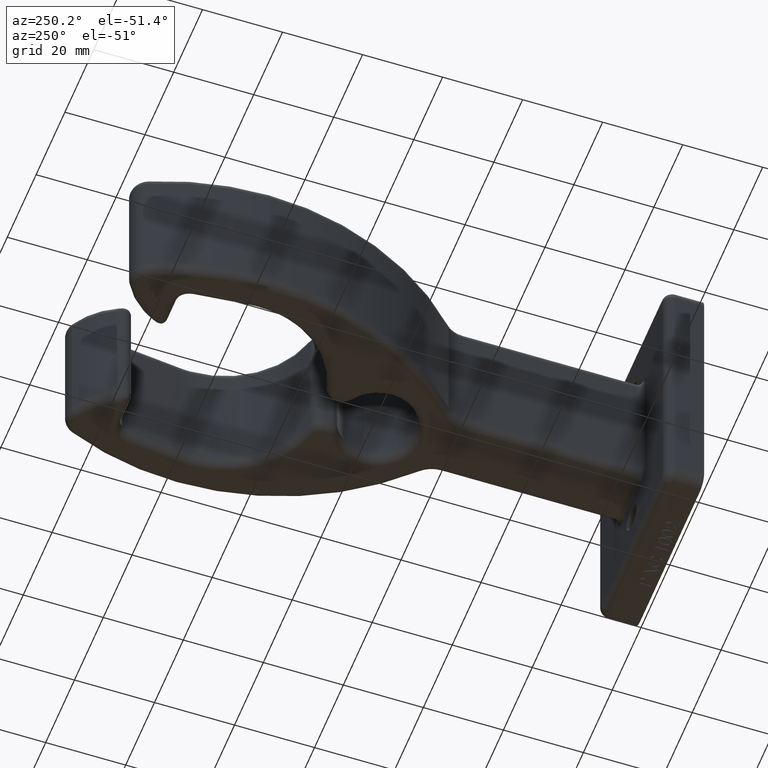
[diagram: clean part render]
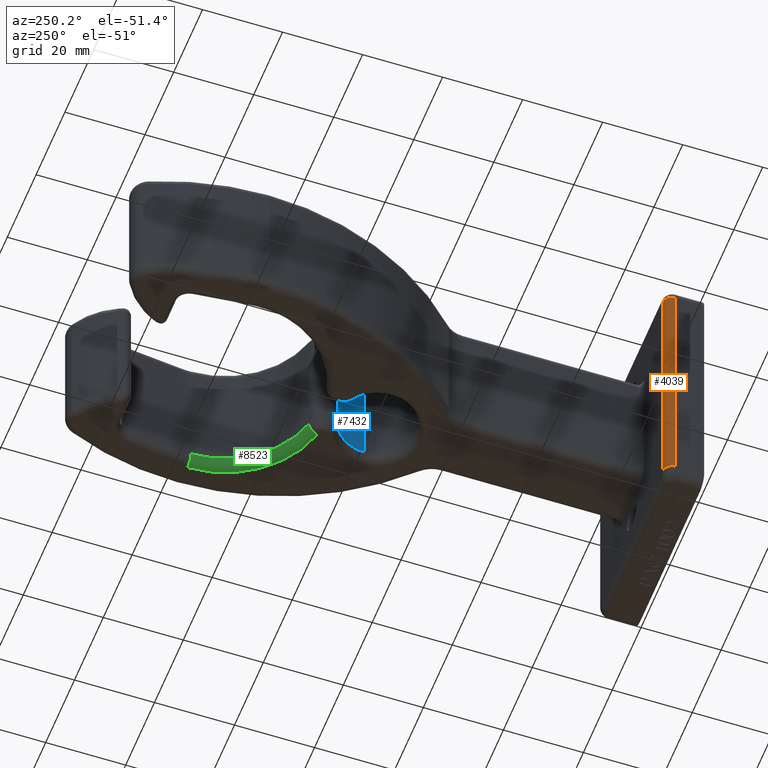
[diagram: same view with three faces highlighted in distinct colors, each labeled with its STEP entity id]
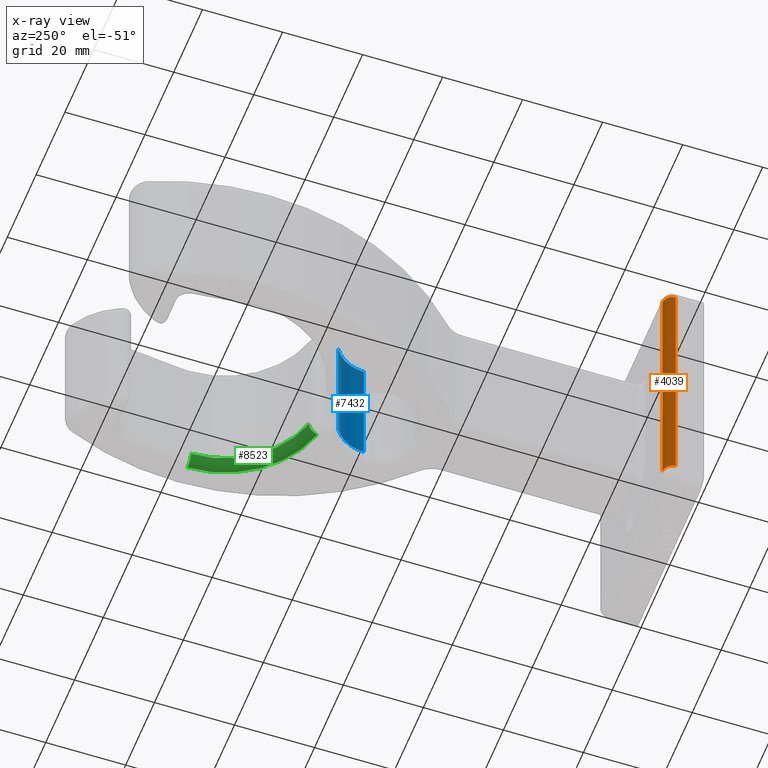
[diagram: x-ray of the same camera — body ghosted, the three highlighted faces saturated]
A machine part, auxiliary view with three faces highlighted in distinct colors.
The next image is the same camera in x-ray (body ghosted, the three faces saturated) — at least one of them is partly hidden behind the body in this view.
Their STEP definitions:

[orange] entity #4039 — the highlighted cylindrical surface (edge-blend (fillet) strip) has radius 2.3813 mm, axis along (0, 0, -1).
#110 = DIRECTION ( 'NONE',  ( 0.0000000000000000000, 0.0000000000000000000, -1.000000000000000000 ) ) ;
#389 = CARTESIAN_POINT ( 'NONE',  ( -0.9375000000000000000, 0.2812499999999999400, -1.250000000000000000 ) ) ;
#598 = ORIENTED_EDGE ( 'NONE', *, *, #9008, .F. ) ;
#730 = DIRECTION ( 'NONE',  ( 0.0000000000000000000, -0.0000000000000000000, 1.000000000000000000 ) ) ;
#898 = EDGE_CURVE ( 'NONE', #9063, #1469, #8937, .T. ) ;
#1218 = CARTESIAN_POINT ( 'NONE',  ( -0.8437500000000000000, 0.2812499999999999400, 0.6875000000000000000 ) ) ;
#1469 = VERTEX_POINT ( 'NONE', #389 ) ;
#1531 = CARTESIAN_POINT ( 'NONE',  ( -0.8437500000000001100, 0.2812499999999999400, -1.250000000000000000 ) ) ;
#2219 = ORIENTED_EDGE ( 'NONE', *, *, #898, .F. ) ;
#2379 = FACE_OUTER_BOUND ( 'NONE', #7134, .T. ) ;
#2640 = DIRECTION ( 'NONE',  ( 1.000000000000000000, 0.0000000000000000000, 0.0000000000000000000 ) ) ;
#2680 = CARTESIAN_POINT ( 'NONE',  ( -0.8437500000000000000, 0.3749999999999999400, 1.250000000000000000 ) ) ;
#2811 = VECTOR ( 'NONE', #13913, 39.37007874015748100 ) ;
#3471 = CIRCLE ( 'NONE', #10487, 0.09375000000000005600 ) ;
#3925 = VERTEX_POINT ( 'NONE', #11929 ) ;
#4039 = ADVANCED_FACE ( 'NONE', ( #2379 ), #10781, .T. ) ;
#4613 = DIRECTION ( 'NONE',  ( 0.0000000000000000000, 0.0000000000000000000, -1.000000000000000000 ) ) ;
#5714 = LINE ( 'NONE', #8354, #2811 ) ;
#6341 = VECTOR ( 'NONE', #4613, 39.37007874015748100 ) ;
#6950 = AXIS2_PLACEMENT_3D ( 'NONE', #1218, #110, #8893 ) ;
#6954 = EDGE_CURVE ( 'NONE', #3925, #12819, #5714, .T. ) ;
#7134 = EDGE_LOOP ( 'NONE', ( #10648, #2219, #598, #14240 ) ) ;
#7296 = CARTESIAN_POINT ( 'NONE',  ( -0.8437500000000000000, 0.2812499999999999400, 1.250000000000000000 ) ) ;
#8354 = CARTESIAN_POINT ( 'NONE',  ( -0.8437500000000000000, 0.3749999999999999400, 0.6875000000000000000 ) ) ;
#8409 = DIRECTION ( 'NONE',  ( 1.000000000000000000, 0.0000000000000000000, 0.0000000000000000000 ) ) ;
#8893 = DIRECTION ( 'NONE',  ( -1.000000000000000000, 0.0000000000000000000, 0.0000000000000000000 ) ) ;
#8937 = LINE ( 'NONE', #12299, #6341 ) ;
#9008 = EDGE_CURVE ( 'NONE', #12819, #9063, #3471, .T. ) ;
#9063 = VERTEX_POINT ( 'NONE', #9518 ) ;
#9214 = DIRECTION ( 'NONE',  ( 0.0000000000000000000, -0.0000000000000000000, 1.000000000000000000 ) ) ;
#9518 = CARTESIAN_POINT ( 'NONE',  ( -0.9375000000000000000, 0.2812499999999999400, 1.250000000000000000 ) ) ;
#10487 = AXIS2_PLACEMENT_3D ( 'NONE', #7296, #730, #8409 ) ;
#10648 = ORIENTED_EDGE ( 'NONE', *, *, #12070, .T. ) ;
#10781 = CYLINDRICAL_SURFACE ( 'NONE', #6950, 0.09375000000000005600 ) ;
#10996 = CIRCLE ( 'NONE', #13884, 0.09375000000000005600 ) ;
#11929 = CARTESIAN_POINT ( 'NONE',  ( -0.8437500000000001100, 0.3749999999999999400, -1.250000000000000000 ) ) ;
#12070 = EDGE_CURVE ( 'NONE', #3925, #1469, #10996, .T. ) ;
#12299 = CARTESIAN_POINT ( 'NONE',  ( -0.9375000000000000000, 0.2812499999999999400, 0.6875000000000000000 ) ) ;
#12819 = VERTEX_POINT ( 'NONE', #2680 ) ;
#13884 = AXIS2_PLACEMENT_3D ( 'NONE', #1531, #9214, #2640 ) ;
#13913 = DIRECTION ( 'NONE',  ( -0.0000000000000000000, -0.0000000000000000000, 1.000000000000000000 ) ) ;
#14240 = ORIENTED_EDGE ( 'NONE', *, *, #6954, .F. ) ;

[blue] entity #7432 — the highlighted cylindrical surface (partial cylindrical patch) has radius 9.525 mm, axis along (-0, -0, -1).
#205 = DIRECTION ( 'NONE',  ( -0.0000000000000000000, -0.0000000000000000000, -1.000000000000000000 ) ) ;
#222 = DIRECTION ( 'NONE',  ( 1.000000000000000000, 0.0000000000000000000, 0.0000000000000000000 ) ) ;
#325 = AXIS2_PLACEMENT_3D ( 'NONE', #8422, #1858, #9530 ) ;
#1603 = CARTESIAN_POINT ( 'NONE',  ( 0.1992187500000001700, 3.192705665118576800, 0.6875000000000000000 ) ) ;
#1668 = CARTESIAN_POINT ( 'NONE',  ( 0.0000000000000000000, 2.874999999999999100, 0.6875000000000000000 ) ) ;
#1783 = CYLINDRICAL_SURFACE ( 'NONE', #12787, 0.3750000000000002200 ) ;
#1858 = DIRECTION ( 'NONE',  ( -0.0000000000000000000, -0.0000000000000000000, -1.000000000000000000 ) ) ;
#2014 = EDGE_LOOP ( 'NONE', ( #11327, #5899, #4902, #10358 ) ) ;
#2319 = CARTESIAN_POINT ( 'NONE',  ( 0.3750000000000002200, 2.874999999999999100, 0.6875000000000000000 ) ) ;
#2337 = AXIS2_PLACEMENT_3D ( 'NONE', #13408, #6801, #222 ) ;
#2899 = EDGE_CURVE ( 'NONE', #12216, #13186, #7337, .T. ) ;
#3359 = CARTESIAN_POINT ( 'NONE',  ( 0.1992187500000001700, 3.192705665118576800, -0.5937499999999998900 ) ) ;
#3574 = VERTEX_POINT ( 'NONE', #10254 ) ;
#3618 = EDGE_CURVE ( 'NONE', #13186, #13008, #10630, .T. ) ;
#3812 = EDGE_CURVE ( 'NONE', #13008, #3574, #9251, .T. ) ;
#4799 = VECTOR ( 'NONE', #11410, 39.37007874015748100 ) ;
#4902 = ORIENTED_EDGE ( 'NONE', *, *, #3618, .T. ) ;
#5130 = VECTOR ( 'NONE', #205, 39.37007874015748100 ) ;
#5899 = ORIENTED_EDGE ( 'NONE', *, *, #2899, .T. ) ;
#6801 = DIRECTION ( 'NONE',  ( 0.0000000000000000000, 0.0000000000000000000, 1.000000000000000000 ) ) ;
#7337 = CIRCLE ( 'NONE', #2337, 0.3750000000000002200 ) ;
#7432 = ADVANCED_FACE ( 'NONE', ( #10548 ), #1783, .F. ) ;
#8422 = CARTESIAN_POINT ( 'NONE',  ( 0.0000000000000000000, 2.874999999999999100, -0.5937499999999998900 ) ) ;
#9196 = DIRECTION ( 'NONE',  ( -0.0000000000000000000, -0.0000000000000000000, -1.000000000000000000 ) ) ;
#9251 = CIRCLE ( 'NONE', #325, 0.3750000000000002200 ) ;
#9332 = DIRECTION ( 'NONE',  ( -1.000000000000000000, 0.0000000000000000000, 0.0000000000000000000 ) ) ;
#9530 = DIRECTION ( 'NONE',  ( 1.000000000000000000, 1.456985596620939600E-015, 0.0000000000000000000 ) ) ;
#10254 = CARTESIAN_POINT ( 'NONE',  ( 0.3750000000000002200, 2.874999999999999100, -0.5937499999999998900 ) ) ;
#10358 = ORIENTED_EDGE ( 'NONE', *, *, #3812, .T. ) ;
#10548 = FACE_OUTER_BOUND ( 'NONE', #2014, .T. ) ;
#10630 = LINE ( 'NONE', #1603, #4799 ) ;
#11327 = ORIENTED_EDGE ( 'NONE', *, *, #13046, .F. ) ;
#11410 = DIRECTION ( 'NONE',  ( -0.0000000000000000000, -0.0000000000000000000, -1.000000000000000000 ) ) ;
#12054 = CARTESIAN_POINT ( 'NONE',  ( 0.1992187500000001700, 3.192705665118576800, 0.5937500000000000000 ) ) ;
#12216 = VERTEX_POINT ( 'NONE', #13317 ) ;
#12787 = AXIS2_PLACEMENT_3D ( 'NONE', #1668, #9196, #9332 ) ;
#13008 = VERTEX_POINT ( 'NONE', #3359 ) ;
#13046 = EDGE_CURVE ( 'NONE', #12216, #3574, #13594, .T. ) ;
#13186 = VERTEX_POINT ( 'NONE', #12054 ) ;
#13317 = CARTESIAN_POINT ( 'NONE',  ( 0.3750000000000002200, 2.874999999999999100, 0.5937500000000000000 ) ) ;
#13408 = CARTESIAN_POINT ( 'NONE',  ( 0.0000000000000000000, 2.874999999999999100, 0.5937500000000000000 ) ) ;
#13594 = LINE ( 'NONE', #2319, #5130 ) ;

[green] entity #8523 — the highlighted toroidal blend (fillet) surface has major radius 26.1937 mm and minor (blend) radius 2.3813 mm.
#508 = VERTEX_POINT ( 'NONE', #10568 ) ;
#733 = EDGE_CURVE ( 'NONE', #1024, #508, #1577, .T. ) ;
#1024 = VERTEX_POINT ( 'NONE', #8380 ) ;
#1539 = DIRECTION ( 'NONE',  ( 0.0000000000000000000, 0.0000000000000000000, 1.000000000000000000 ) ) ;
#1577 = CIRCLE ( 'NONE', #3122, 0.09375000000000005600 ) ;
#2116 = CARTESIAN_POINT ( 'NONE',  ( 0.2578125000000002800, 3.376496481055899900, -0.5937500000000000000 ) ) ;
#2442 = DIRECTION ( 'NONE',  ( -0.0000000000000000000, -0.0000000000000000000, -1.000000000000000000 ) ) ;
#2687 = VERTEX_POINT ( 'NONE', #9604 ) ;
#2892 = CARTESIAN_POINT ( 'NONE',  ( 0.2578125000000002800, 3.376496481055899900, -0.6875000000000000000 ) ) ;
#2914 = EDGE_CURVE ( 'NONE', #1024, #2687, #12875, .T. ) ;
#3122 = AXIS2_PLACEMENT_3D ( 'NONE', #4403, #12095, #7964 ) ;
#3213 = DIRECTION ( 'NONE',  ( -0.2500000000000008300, 0.9682458365518541400, 0.0000000000000000000 ) ) ;
#3520 = ORIENTED_EDGE ( 'NONE', *, *, #4185, .F. ) ;
#3664 = TOROIDAL_SURFACE ( 'NONE', #12231, 1.031249999999999800, 0.09375000000000001400 ) ;
#3755 = DIRECTION ( 'NONE',  ( 1.000000000000000000, 0.0000000000000000000, 0.0000000000000000000 ) ) ;
#3832 = AXIS2_PLACEMENT_3D ( 'NONE', #9011, #2442, #10128 ) ;
#4185 = EDGE_CURVE ( 'NONE', #9047, #508, #13029, .T. ) ;
#4403 = CARTESIAN_POINT ( 'NONE',  ( 1.031249999999999800, 4.374999999999999100, -0.5937499999999998900 ) ) ;
#4883 = CIRCLE ( 'NONE', #11832, 0.09374999999999975000 ) ;
#5721 = CARTESIAN_POINT ( 'NONE',  ( 0.0000000000000000000, 4.374999999999999100, -0.6875000000000000000 ) ) ;
#6637 = EDGE_CURVE ( 'NONE', #9047, #2687, #4883, .T. ) ;
#6832 = DIRECTION ( 'NONE',  ( 1.000000000000000000, 0.0000000000000000000, 0.0000000000000000000 ) ) ;
#7964 = DIRECTION ( 'NONE',  ( 0.0000000000000000000, 0.0000000000000000000, -1.000000000000000000 ) ) ;
#8105 = CARTESIAN_POINT ( 'NONE',  ( 0.0000000000000000000, 4.374999999999999100, -0.5937499999999998900 ) ) ;
#8380 = CARTESIAN_POINT ( 'NONE',  ( 0.9374999999999997800, 4.374999999999999100, -0.5937499999999998900 ) ) ;
#8523 = ADVANCED_FACE ( 'NONE', ( #12777 ), #3664, .T. ) ;
#9011 = CARTESIAN_POINT ( 'NONE',  ( 0.0000000000000000000, 4.374999999999999100, -0.5937499999999998900 ) ) ;
#9047 = VERTEX_POINT ( 'NONE', #2892 ) ;
#9166 = AXIS2_PLACEMENT_3D ( 'NONE', #5721, #13451, #6832 ) ;
#9516 = ORIENTED_EDGE ( 'NONE', *, *, #2914, .F. ) ;
#9604 = CARTESIAN_POINT ( 'NONE',  ( 0.2343750000000001400, 3.467269528232636700, -0.5937499999999998900 ) ) ;
#9801 = DIRECTION ( 'NONE',  ( 0.9682458365518542600, 0.2500000000000001100, 0.0000000000000000000 ) ) ;
#10111 = EDGE_LOOP ( 'NONE', ( #9516, #12613, #3520, #13276 ) ) ;
#10128 = DIRECTION ( 'NONE',  ( 1.000000000000000000, 0.0000000000000000000, 0.0000000000000000000 ) ) ;
#10568 = CARTESIAN_POINT ( 'NONE',  ( 1.031249999999999800, 4.374999999999999100, -0.6875000000000000000 ) ) ;
#11832 = AXIS2_PLACEMENT_3D ( 'NONE', #2116, #9801, #3213 ) ;
#12095 = DIRECTION ( 'NONE',  ( 0.0000000000000000000, -1.000000000000000000, 0.0000000000000000000 ) ) ;
#12231 = AXIS2_PLACEMENT_3D ( 'NONE', #8105, #1539, #3755 ) ;
#12613 = ORIENTED_EDGE ( 'NONE', *, *, #733, .T. ) ;
#12777 = FACE_OUTER_BOUND ( 'NONE', #10111, .T. ) ;
#12875 = CIRCLE ( 'NONE', #3832, 0.9374999999999997800 ) ;
#13029 = CIRCLE ( 'NONE', #9166, 1.031249999999999800 ) ;
#13276 = ORIENTED_EDGE ( 'NONE', *, *, #6637, .T. ) ;
#13451 = DIRECTION ( 'NONE',  ( 0.0000000000000000000, 0.0000000000000000000, 1.000000000000000000 ) ) ;